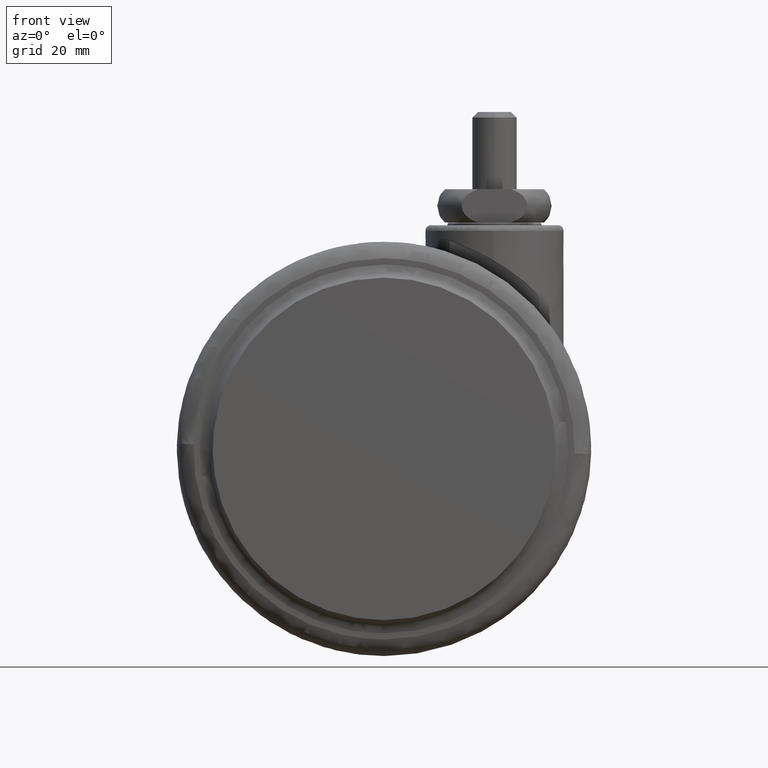
[diagram: clean part render]
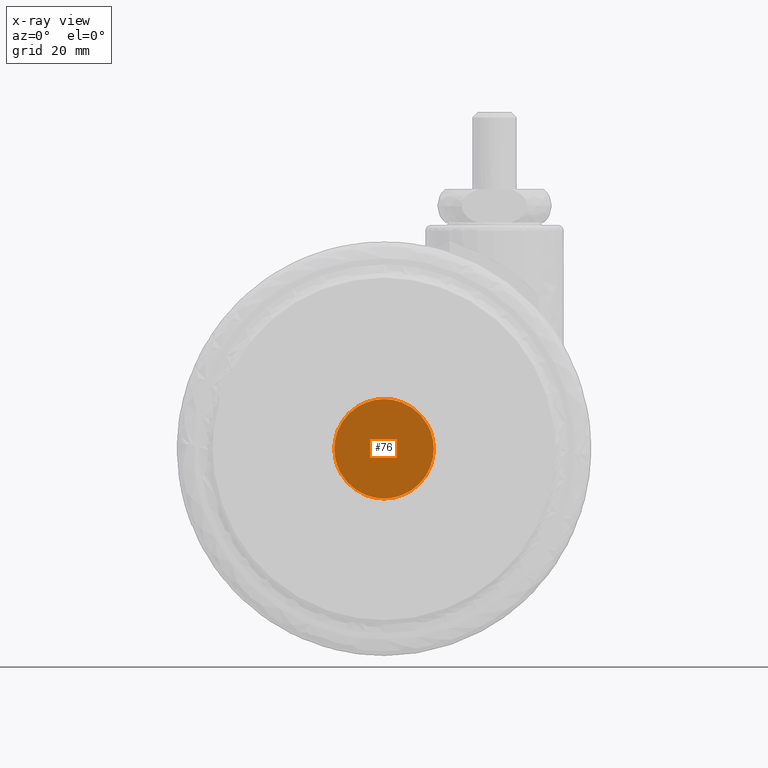
[diagram: x-ray — body ghosted, one internal face saturated and labeled with its STEP entity id]
A machine part, front view, then the same camera in x-ray: the body is ghosted and one INTERNAL B-rep face — a face not visible from any outside direction — is saturated and labeled: STEP entity #76.
In plain terms, the highlighted face is a freeform B-spline surface patch.
Its self-contained STEP definition (entity closure, byte-faithful):
#5=CARTESIAN_POINT('',(-10.101989400823641,9.500000000000149,-50.399099965112512));
#6=CARTESIAN_POINT('',(-10.101989400823641,9.500000000000149,-30.600899552089871));
#7=CARTESIAN_POINT('',(-29.898010116378739,9.500000000000149,-50.399099965112512));
#8=CARTESIAN_POINT('',(-29.898010116378739,9.500000000000149,-30.600899552089871));
#9=B_SPLINE_SURFACE_WITH_KNOTS('',1,1,((#5,#7),(#6,#8)),.UNSPECIFIED.,.F.,.F.,.U.,(2,2),(2,2),(0.0,19.798200413022631),(0.0,19.796020715555098),.UNSPECIFIED.);
#10=CARTESIAN_POINT('',(-20.0,9.500000000000140,-49.500000000000000));
#11=VERTEX_POINT('',#10);
#12=CARTESIAN_POINT('',(-12.090638159789570,9.500000000000140,-36.205585571890609));
#13=VERTEX_POINT('',#12);
#14=CARTESIAN_POINT('',(-20.0,9.500000000000140,-49.500000000000000));
#15=CARTESIAN_POINT('',(-11.000000000003908,9.500000000000140,-49.500000000002125));
#16=CARTESIAN_POINT('',(-11.000000000010470,9.500000000000140,-40.500000000005677));
#17=CARTESIAN_POINT('',(-11.000000000012141,9.500000000000140,-38.214299911602915));
#18=CARTESIAN_POINT('',(-12.090638159789565,9.500000000000140,-36.205585571890602));
#26=(BOUNDED_CURVE()B_SPLINE_CURVE(2,(#14,#15,#16,#17,#18),.UNSPECIFIED.,.F.,.U.)B_SPLINE_CURVE_WITH_KNOTS((3,2,3),(0.0,0.250000000000000,0.331244180830740),.UNSPECIFIED.)CURVE()GEOMETRIC_REPRESENTATION_ITEM()RATIONAL_B_SPLINE_CURVE((1.0,0.707106781186547,1.0,0.904816521466489,0.871497872869582))REPRESENTATION_ITEM(''));
#27=EDGE_CURVE('',#11,#13,#26,.T.);
#28=ORIENTED_EDGE('',*,*,#27,.T.);
#29=CARTESIAN_POINT('',(-20.0,9.500000000000140,-31.500000000000000));
#30=VERTEX_POINT('',#29);
#31=CARTESIAN_POINT('',(-12.090638159789565,9.500000000000140,-36.205585571890602));
#32=CARTESIAN_POINT('',(-14.645551562513631,9.500000000000140,-31.500000000003560));
#33=CARTESIAN_POINT('',(-20.0,9.500000000000140,-31.500000000000000));
#41=(BOUNDED_CURVE()B_SPLINE_CURVE(2,(#31,#32,#33),.UNSPECIFIED.,.F.,.U.)B_SPLINE_CURVE_WITH_KNOTS((3,3),(0.331244180830740,0.500000000000000),.UNSPECIFIED.)CURVE()GEOMETRIC_REPRESENTATION_ITEM()RATIONAL_B_SPLINE_CURVE((0.871497872869582,0.802290259720059,1.0))REPRESENTATION_ITEM(''));
#42=EDGE_CURVE('',#13,#30,#41,.T.);
#43=ORIENTED_EDGE('',*,*,#42,.T.);
#44=CARTESIAN_POINT('',(-27.909361840210408,9.500000000000140,-44.794414428109391));
#45=VERTEX_POINT('',#44);
#46=CARTESIAN_POINT('',(-20.0,9.500000000000140,-31.500000000000000));
#47=CARTESIAN_POINT('',(-28.999999999996088,9.500000000000140,-31.499999999997872));
#48=CARTESIAN_POINT('',(-28.999999999989509,9.500000000000139,-40.499999999994309));
#49=CARTESIAN_POINT('',(-28.999999999987839,9.500000000000139,-42.785700088397071));
#50=CARTESIAN_POINT('',(-27.909361840210412,9.500000000000140,-44.794414428109398));
#58=(BOUNDED_CURVE()B_SPLINE_CURVE(2,(#46,#47,#48,#49,#50),.UNSPECIFIED.,.F.,.U.)B_SPLINE_CURVE_WITH_KNOTS((3,2,3),(0.500000000000000,0.750000000000000,0.831244180830741),.UNSPECIFIED.)CURVE()GEOMETRIC_REPRESENTATION_ITEM()RATIONAL_B_SPLINE_CURVE((1.0,0.707106781186547,1.0,0.904816521466489,0.871497872869581))REPRESENTATION_ITEM(''));
#59=EDGE_CURVE('',#30,#45,#58,.T.);
#60=ORIENTED_EDGE('',*,*,#59,.T.);
#61=CARTESIAN_POINT('',(-27.909361840210412,9.500000000000140,-44.794414428109398));
#62=CARTESIAN_POINT('',(-25.354448437486347,9.500000000000139,-49.499999999996440));
#63=CARTESIAN_POINT('',(-20.0,9.500000000000140,-49.500000000000000));
#71=(BOUNDED_CURVE()B_SPLINE_CURVE(2,(#61,#62,#63),.UNSPECIFIED.,.F.,.U.)B_SPLINE_CURVE_WITH_KNOTS((3,3),(0.831244180830741,1.0),.UNSPECIFIED.)CURVE()GEOMETRIC_REPRESENTATION_ITEM()RATIONAL_B_SPLINE_CURVE((0.871497872869581,0.802290259720059,1.0))REPRESENTATION_ITEM(''));
#72=EDGE_CURVE('',#45,#11,#71,.T.);
#73=ORIENTED_EDGE('',*,*,#72,.T.);
#74=EDGE_LOOP('',(#28,#43,#60,#73));
#75=FACE_OUTER_BOUND('',#74,.T.);
#76=ADVANCED_FACE('',(#75),#9,.T.);